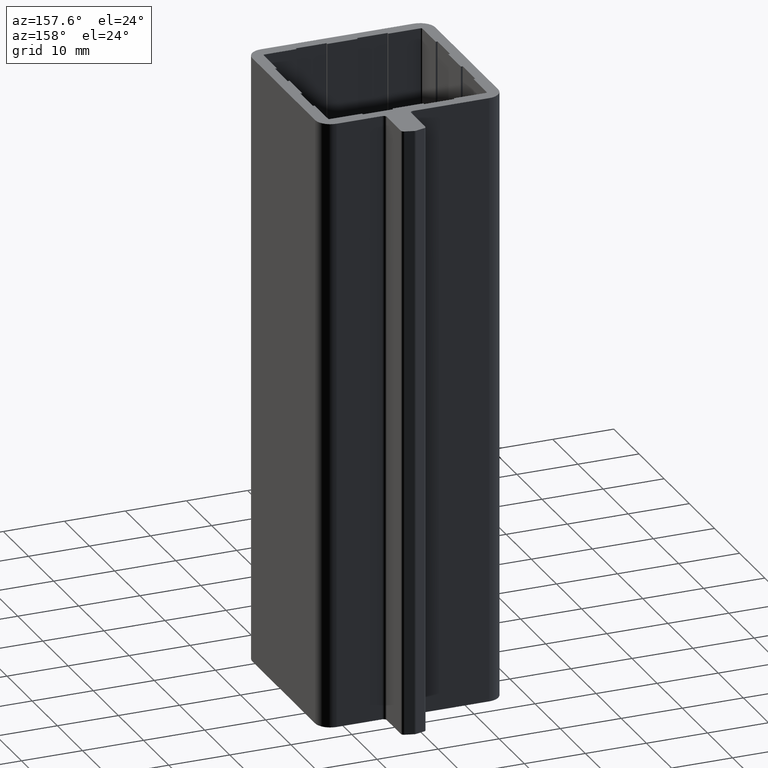
[diagram: clean part render]
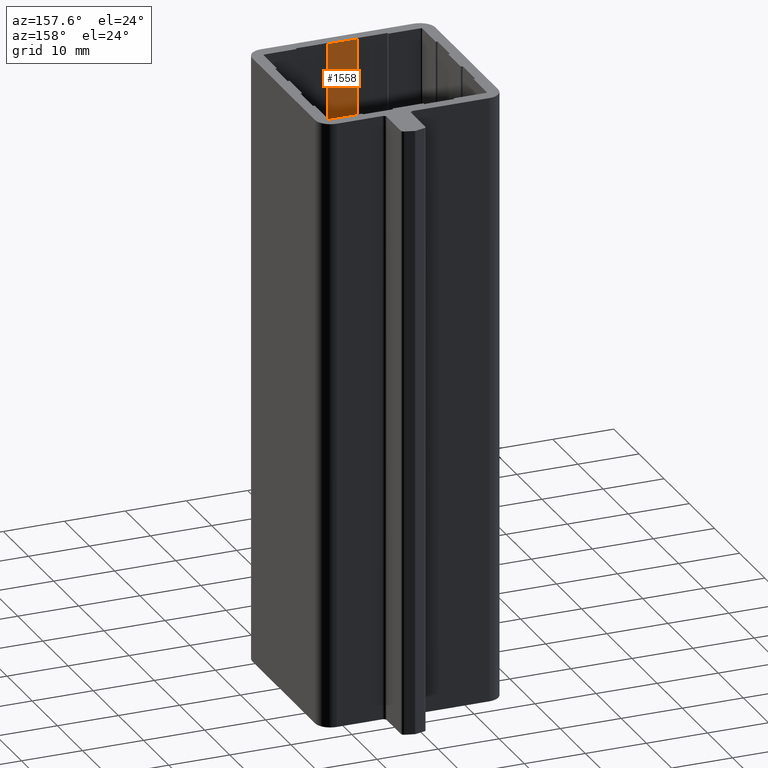
[diagram: same view with one face highlighted and labeled with its STEP entity id]
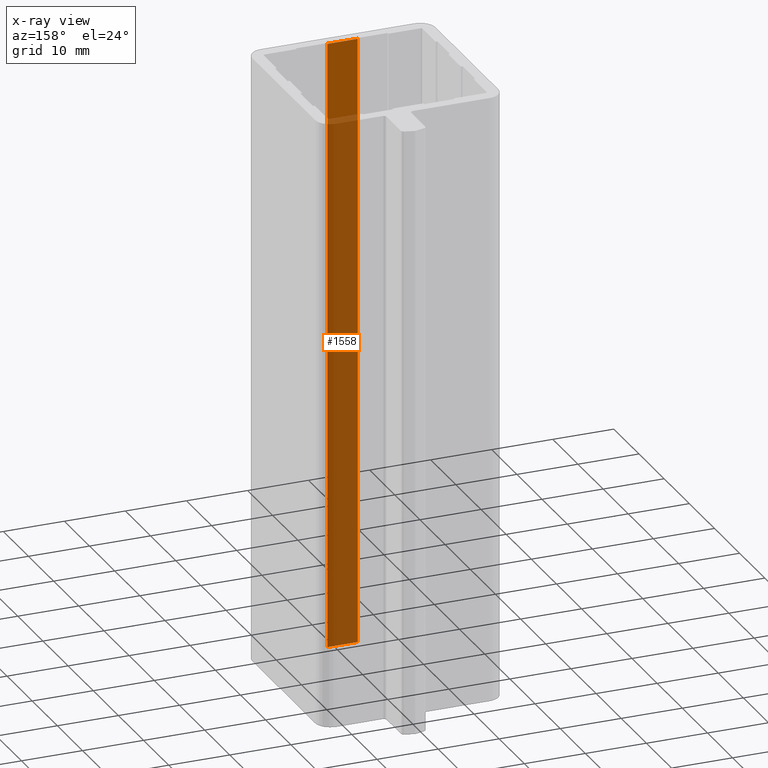
[diagram: x-ray of the same camera — body ghosted, the highlighted face saturated]
A machine part, auxiliary view. The second image highlights one B-rep face of the part: STEP entity #1558.
The next image is the same camera in x-ray: the body ghosted, the highlighted face saturated — about 87% of this face is hidden behind the body in this view.
In plain terms, the highlighted planar face has unit normal (0, 1, 0).
Its self-contained STEP definition (entity closure, byte-faithful):
#800=CARTESIAN_POINT('',(2.499999999999716,1.999999999984425,100.0));
#801=VERTEX_POINT('',#800);
#808=CARTESIAN_POINT('',(-2.500000000000284,1.999999999984425,100.0));
#809=VERTEX_POINT('',#808);
#810=CARTESIAN_POINT('',(-2.500000000000284,1.999999999984425,100.0));
#811=DIRECTION('',(1.0,0.0,0.0));
#812=VECTOR('',#811,5.0);
#813=LINE('',#810,#812);
#814=EDGE_CURVE('',#809,#801,#813,.T.);
#1062=CARTESIAN_POINT('',(-2.500000000000284,1.999999999984425,0.0));
#1063=VERTEX_POINT('',#1062);
#1070=CARTESIAN_POINT('',(2.499999999999716,1.999999999984425,0.0));
#1071=VERTEX_POINT('',#1070);
#1072=CARTESIAN_POINT('',(-2.500000000000284,1.999999999984425,0.0));
#1073=DIRECTION('',(1.0,0.0,0.0));
#1074=VECTOR('',#1073,5.0);
#1075=LINE('',#1072,#1074);
#1076=EDGE_CURVE('',#1063,#1071,#1075,.T.);
#1531=CARTESIAN_POINT('',(-2.500000000000284,1.999999999984425,100.0));
#1532=DIRECTION('',(0.0,0.0,-1.0));
#1533=VECTOR('',#1532,100.0);
#1534=LINE('',#1531,#1533);
#1535=EDGE_CURVE('',#809,#1063,#1534,.T.);
#1542=CARTESIAN_POINT('',(-2.500000000000284,1.999999999984425,100.0));
#1543=DIRECTION('',(0.0,1.0,0.0));
#1544=DIRECTION('',(1.0,0.0,0.0));
#1545=AXIS2_PLACEMENT_3D('',#1542,#1543,#1544);
#1546=PLANE('',#1545);
#1547=ORIENTED_EDGE('',*,*,#814,.T.);
#1548=CARTESIAN_POINT('',(2.499999999999716,1.999999999984425,100.0));
#1549=DIRECTION('',(0.0,0.0,-1.0));
#1550=VECTOR('',#1549,100.0);
#1551=LINE('',#1548,#1550);
#1552=EDGE_CURVE('',#801,#1071,#1551,.T.);
#1553=ORIENTED_EDGE('',*,*,#1552,.T.);
#1554=ORIENTED_EDGE('',*,*,#1076,.F.);
#1555=ORIENTED_EDGE('',*,*,#1535,.F.);
#1556=EDGE_LOOP('',(#1547,#1553,#1554,#1555));
#1557=FACE_OUTER_BOUND('',#1556,.T.);
#1558=ADVANCED_FACE('',(#1557),#1546,.T.);